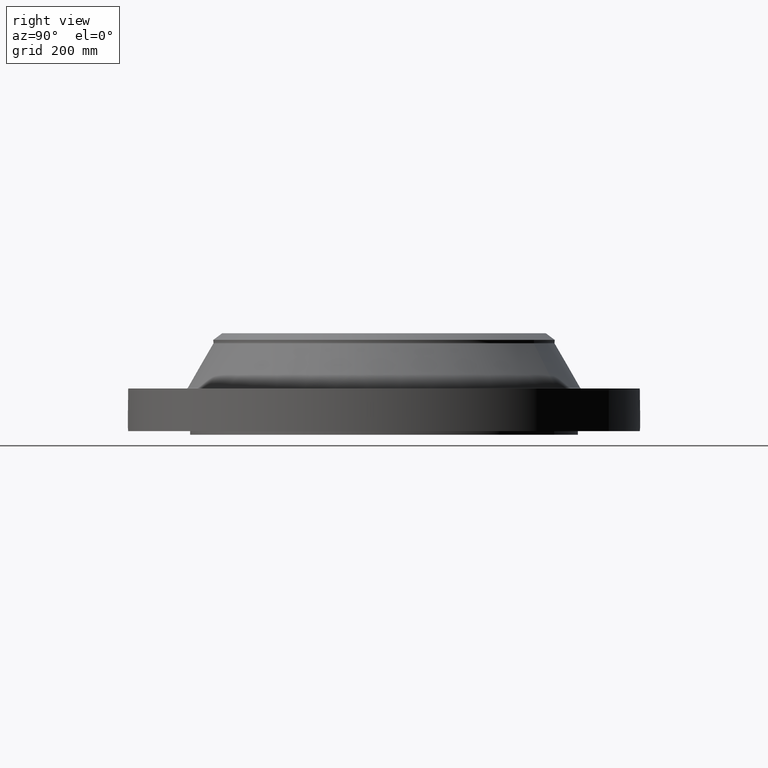
[diagram: clean part render]
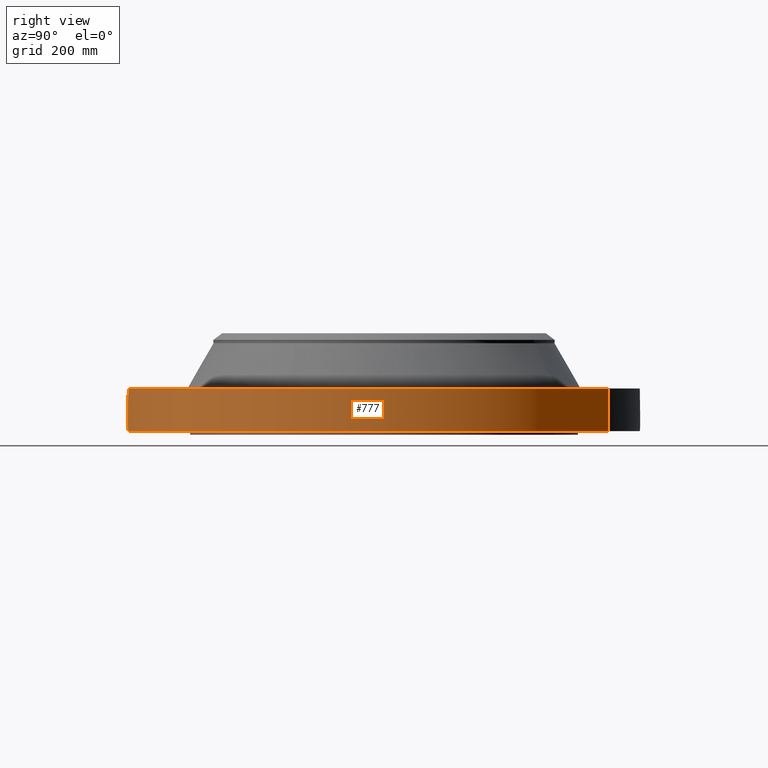
[diagram: same view with one face highlighted and labeled with its STEP entity id]
A machine part, right view. The second image highlights one B-rep face of the part: STEP entity #777.
In plain terms, the highlighted cylindrical surface (partial cylindrical patch) has radius 457.2 mm, axis along (0, 0, -1).
Its self-contained STEP definition (entity closure, byte-faithful):
#38=AXIS2_PLACEMENT_3D('Cylinder Axis2P3D',#35,#36,#37) ;
#169=AXIS2_PLACEMENT_3D('Circle Axis2P3D',#167,#168,$) ;
#681=AXIS2_PLACEMENT_3D('Circle Axis2P3D',#679,#680,$) ;
#35=CARTESIAN_POINT('Axis2P3D Location',(0.,0.,3.56500000001)) ;
#44=CARTESIAN_POINT('Vertex',(-8.62965969491,-15.7964861141,0.250000000001)) ;
#46=CARTESIAN_POINT('Vertex',(8.62965969491,15.7964861141,0.250000000001)) ;
#49=CARTESIAN_POINT('Line Origine',(-8.62965969491,-15.7964861141,1.75000000001)) ;
#53=CARTESIAN_POINT('Vertex',(-8.62965969491,-15.7964861141,3.25000000001)) ;
#60=CARTESIAN_POINT('Vertex',(8.62965969491,15.7964861141,3.25000000001)) ;
#63=CARTESIAN_POINT('Line Origine',(8.62965969491,15.7964861141,1.75000000001)) ;
#167=CARTESIAN_POINT('Axis2P3D Location',(0.,0.,0.250000000001)) ;
#679=CARTESIAN_POINT('Axis2P3D Location',(0.,0.,3.25000000001)) ;
#691=CARTESIAN_POINT('Control Point',(0.000715916274482,-17.9999999858,1.29411846164)) ;
#692=CARTESIAN_POINT('Control Point',(0.0187947670154,-17.9999992668,1.29408195945)) ;
#693=CARTESIAN_POINT('Control Point',(0.0368704907861,-17.9999710998,1.29265734614)) ;
#694=CARTESIAN_POINT('Control Point',(0.0547316628355,-17.99991679,1.28986144223)) ;
#695=CARTESIAN_POINT('Vertex',(0.00071561728658,-17.9999999858,1.2941185108)) ;
#697=CARTESIAN_POINT('Vertex',(0.054723070488,-17.9999170677,1.28986280481)) ;
#701=CARTESIAN_POINT('Control Point',(0.054722976633,-17.9999168164,1.28986226213)) ;
#702=CARTESIAN_POINT('Control Point',(0.0953738332128,-17.9997932305,1.28552531456)) ;
#703=CARTESIAN_POINT('Control Point',(0.135409945982,-17.9995285052,1.27380449255)) ;
#704=CARTESIAN_POINT('Control Point',(0.172317078189,-17.9991751707,1.25545477223)) ;
#705=CARTESIAN_POINT('Vertex',(0.172317078189,-17.9991751707,1.25545477223)) ;
#709=CARTESIAN_POINT('Control Point',(0.0311785035352,-17.9999729973,0.531201562891)) ;
#710=CARTESIAN_POINT('Control Point',(0.0718024995041,-17.9999026308,0.536338161167)) ;
#711=CARTESIAN_POINT('Control Point',(0.111634499071,-17.9997190308,0.54672885578)) ;
#712=CARTESIAN_POINT('Control Point',(0.149741617215,-17.9994324956,0.56221850727)) ;
#713=CARTESIAN_POINT('Control Point',(0.239620396402,-17.9985293262,0.613169843013)) ;
#714=CARTESIAN_POINT('Control Point',(0.308806249486,-17.9974126624,0.690006161399)) ;
#715=CARTESIAN_POINT('Control Point',(0.340722284399,-17.9967939004,0.743754792642)) ;
#716=CARTESIAN_POINT('Control Point',(0.375373751697,-17.9960901162,0.841059821642)) ;
#717=CARTESIAN_POINT('Control Point',(0.377750076791,-17.9960345675,0.942362779088)) ;
#718=CARTESIAN_POINT('Control Point',(0.373383149171,-17.9961284653,0.982905031365)) ;
#719=CARTESIAN_POINT('Control Point',(0.350799748719,-17.9966011635,1.07574548388)) ;
#720=CARTESIAN_POINT('Control Point',(0.300979187967,-17.9975215948,1.15733410868)) ;
#721=CARTESIAN_POINT('Control Point',(0.264028464076,-17.9981368944,1.19844198086)) ;
#722=CARTESIAN_POINT('Control Point',(0.220353851533,-17.9987152854,1.23157154257)) ;
#723=CARTESIAN_POINT('Control Point',(0.172317078189,-17.9991751707,1.25545477223)) ;
#724=CARTESIAN_POINT('Vertex',(0.0311785035352,-17.9999729973,0.531201562891)) ;
#728=CARTESIAN_POINT('Control Point',(0.0311785035352,-17.9999729973,0.531201562891)) ;
#729=CARTESIAN_POINT('Control Point',(0.0207810348001,-17.9999910072,0.530876353489)) ;
#730=CARTESIAN_POINT('Control Point',(0.0103754059314,-18.0000000016,0.5309342353)) ;
#731=CARTESIAN_POINT('Control Point',(-2.72878352964E-006,-18.0000000001,0.531374667806)) ;
#732=CARTESIAN_POINT('Vertex',(-2.72878354635E-006,-18.0000000001,0.531374667806)) ;
#736=CARTESIAN_POINT('Control Point',(-0.192490992805,-17.9989707267,0.587658904988)) ;
#737=CARTESIAN_POINT('Control Point',(-0.148953542629,-17.9994363404,0.562184957809)) ;
#738=CARTESIAN_POINT('Control Point',(-0.101107482194,-17.9998082664,0.543830382585)) ;
#739=CARTESIAN_POINT('Control Point',(-0.050802730282,-17.9999999924,0.533530543737)) ;
#740=CARTESIAN_POINT('Control Point',(-2.72878354562E-006,-18.0000000001,0.531374667806)) ;
#741=CARTESIAN_POINT('Vertex',(-0.192490992805,-17.9989707267,0.587658904988)) ;
#745=CARTESIAN_POINT('Control Point',(-0.192490992805,-17.9989707267,0.587658904988)) ;
#746=CARTESIAN_POINT('Control Point',(-0.249225140587,-17.9983639802,0.620854295753)) ;
#747=CARTESIAN_POINT('Control Point',(-0.299118627288,-17.9976068279,0.665382621832)) ;
#748=CARTESIAN_POINT('Control Point',(-0.339016736025,-17.9968404577,0.719620461672)) ;
#749=CARTESIAN_POINT('Control Point',(-0.382904584849,-17.9959349998,0.817936937122)) ;
#750=CARTESIAN_POINT('Control Point',(-0.391223224504,-17.9957468042,0.923210605772)) ;
#751=CARTESIAN_POINT('Control Point',(-0.389017375864,-17.9957960737,0.963428947668)) ;
#752=CARTESIAN_POINT('Control Point',(-0.369349141293,-17.9962276358,1.06643517056)) ;
#753=CARTESIAN_POINT('Control Point',(-0.315771155109,-17.9972806993,1.1571793369)) ;
#754=CARTESIAN_POINT('Control Point',(-0.271217967004,-17.9980645582,1.2047921396)) ;
#755=CARTESIAN_POINT('Control Point',(-0.190427156289,-17.9991387671,1.26072522641)) ;
#756=CARTESIAN_POINT('Control Point',(-0.0985097274425,-17.9997740421,1.28789388359)) ;
#757=CARTESIAN_POINT('Control Point',(-0.0657534719698,-17.9999256067,1.29368529426)) ;
#758=CARTESIAN_POINT('Control Point',(-0.0327250899303,-18.0000000471,1.29575873174)) ;
#759=CARTESIAN_POINT('Control Point',(2.58579355584E-005,-18.0000000001,1.29415298429)) ;
#760=CARTESIAN_POINT('Vertex',(2.58579355492E-005,-18.0000000001,1.29415298429)) ;
#764=CARTESIAN_POINT('Control Point',(0.000715617277093,-17.9999999858,1.29411851078)) ;
#765=CARTESIAN_POINT('Control Point',(0.000370762243298,-17.9999999996,1.29413607398)) ;
#766=CARTESIAN_POINT('Control Point',(2.58579404368E-005,-18.0000000001,1.29415298429)) ;
#36=DIRECTION('Axis2P3D Direction',(0.,0.,-0.0393700787402)) ;
#37=DIRECTION('Axis2P3D XDirection',(0.0188750212049,0.0345504945626,0.)) ;
#50=DIRECTION('Vector Direction',(0.,0.,-0.0393700787402)) ;
#64=DIRECTION('Vector Direction',(0.,0.,-0.0393700787402)) ;
#168=DIRECTION('Axis2P3D Direction',(0.,0.,-0.0393700787402)) ;
#680=DIRECTION('Axis2P3D Direction',(0.,0.,-0.0393700787402)) ;
#51=VECTOR('Line Direction',#50,0.0393700787402) ;
#65=VECTOR('Line Direction',#64,0.0393700787402) ;
#685=ORIENTED_EDGE('',*,*,#171,.F.) ;
#686=ORIENTED_EDGE('',*,*,#67,.T.) ;
#687=ORIENTED_EDGE('',*,*,#683,.T.) ;
#688=ORIENTED_EDGE('',*,*,#55,.F.) ;
#769=ORIENTED_EDGE('',*,*,#699,.T.) ;
#770=ORIENTED_EDGE('',*,*,#707,.T.) ;
#771=ORIENTED_EDGE('',*,*,#726,.F.) ;
#772=ORIENTED_EDGE('',*,*,#734,.T.) ;
#773=ORIENTED_EDGE('',*,*,#743,.F.) ;
#774=ORIENTED_EDGE('',*,*,#762,.T.) ;
#775=ORIENTED_EDGE('',*,*,#767,.F.) ;
#776=FACE_BOUND('',#768,.T.) ;
#777=ADVANCED_FACE('PartBody',(#689,#776),#39,.T.) ;
#690=B_SPLINE_CURVE_WITH_KNOTS('',3,(#691,#692,#693,#694),.UNSPECIFIED.,.F.,.U.,(4,4),(34.6167850288,36.6224614831),.UNSPECIFIED.) ;
#700=B_SPLINE_CURVE_WITH_KNOTS('',3,(#701,#702,#703,#704),.UNSPECIFIED.,.F.,.U.,(4,4),(0.,4.59363155632),.UNSPECIFIED.) ;
#708=B_SPLINE_CURVE_WITH_KNOTS('',5,(#709,#710,#711,#712,#713,#714,#715,#716,#717,#718,#719,#720,#721,#722,#723),.UNSPECIFIED.,.F.,.U.,(6,3,3,3,6),(0.,7.1161511947,18.0025199687,25.3409690982,35.3057659859),.UNSPECIFIED.) ;
#727=B_SPLINE_CURVE_WITH_KNOTS('',3,(#728,#729,#730,#731),.UNSPECIFIED.,.F.,.U.,(4,4),(0.,1.08463646199),.UNSPECIFIED.) ;
#735=B_SPLINE_CURVE_WITH_KNOTS('',4,(#736,#737,#738,#739,#740),.UNSPECIFIED.,.F.,.U.,(5,5),(0.,7.07892576001),.UNSPECIFIED.) ;
#744=B_SPLINE_CURVE_WITH_KNOTS('',5,(#745,#746,#747,#748,#749,#750,#751,#752,#753,#754,#755,#756,#757,#758,#759),.UNSPECIFIED.,.F.,.U.,(6,3,3,3,6),(0.,11.5307860697,18.6312315107,30.1312120148,36.2530440714),.UNSPECIFIED.) ;
#763=B_SPLINE_CURVE_WITH_KNOTS('',2,(#764,#765,#766),.UNSPECIFIED.,.F.,.U.,(3,3),(1.01704989143,1.04283780222),.UNSPECIFIED.) ;
#170=CIRCLE('generated circle',#169,18.0000000001) ;
#682=CIRCLE('generated circle',#681,18.0000000001) ;
#39=CYLINDRICAL_SURFACE('generated cylinder',#38,18.0000000001) ;
#55=EDGE_CURVE('',#45,#54,#52,.F.) ;
#67=EDGE_CURVE('',#47,#61,#66,.F.) ;
#171=EDGE_CURVE('',#47,#45,#170,.T.) ;
#683=EDGE_CURVE('',#61,#54,#682,.T.) ;
#699=EDGE_CURVE('',#696,#698,#690,.T.) ;
#707=EDGE_CURVE('',#698,#706,#700,.T.) ;
#726=EDGE_CURVE('',#725,#706,#708,.T.) ;
#734=EDGE_CURVE('',#725,#733,#727,.T.) ;
#743=EDGE_CURVE('',#742,#733,#735,.T.) ;
#762=EDGE_CURVE('',#742,#761,#744,.T.) ;
#767=EDGE_CURVE('',#696,#761,#763,.T.) ;
#684=EDGE_LOOP('',(#685,#686,#687,#688)) ;
#768=EDGE_LOOP('',(#769,#770,#771,#772,#773,#774,#775)) ;
#689=FACE_OUTER_BOUND('',#684,.T.) ;
#52=LINE('Line',#49,#51) ;
#66=LINE('Line',#63,#65) ;
#45=VERTEX_POINT('',#44) ;
#47=VERTEX_POINT('',#46) ;
#54=VERTEX_POINT('',#53) ;
#61=VERTEX_POINT('',#60) ;
#696=VERTEX_POINT('',#695) ;
#698=VERTEX_POINT('',#697) ;
#706=VERTEX_POINT('',#705) ;
#725=VERTEX_POINT('',#724) ;
#733=VERTEX_POINT('',#732) ;
#742=VERTEX_POINT('',#741) ;
#761=VERTEX_POINT('',#760) ;